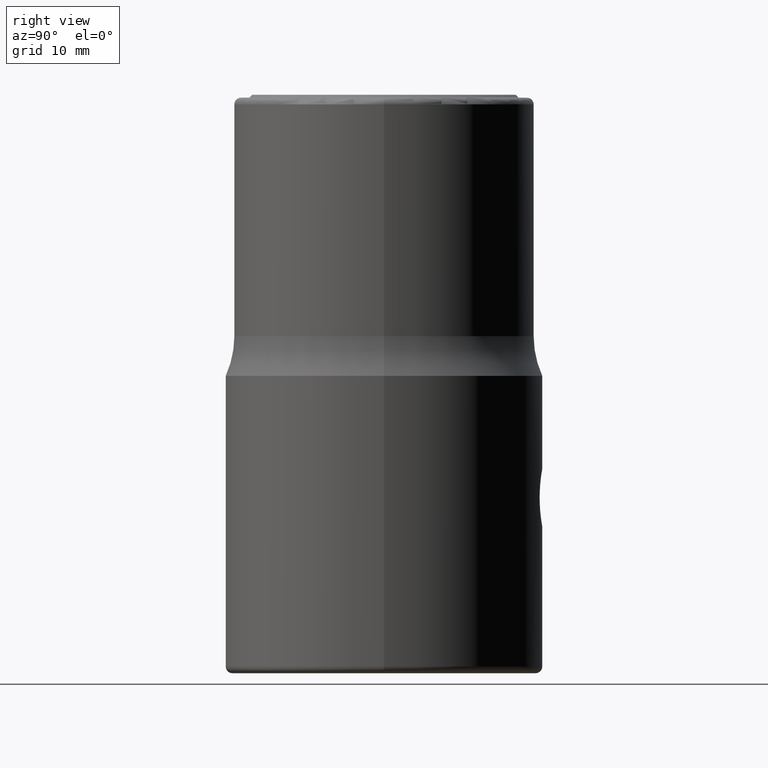
[diagram: clean part render]
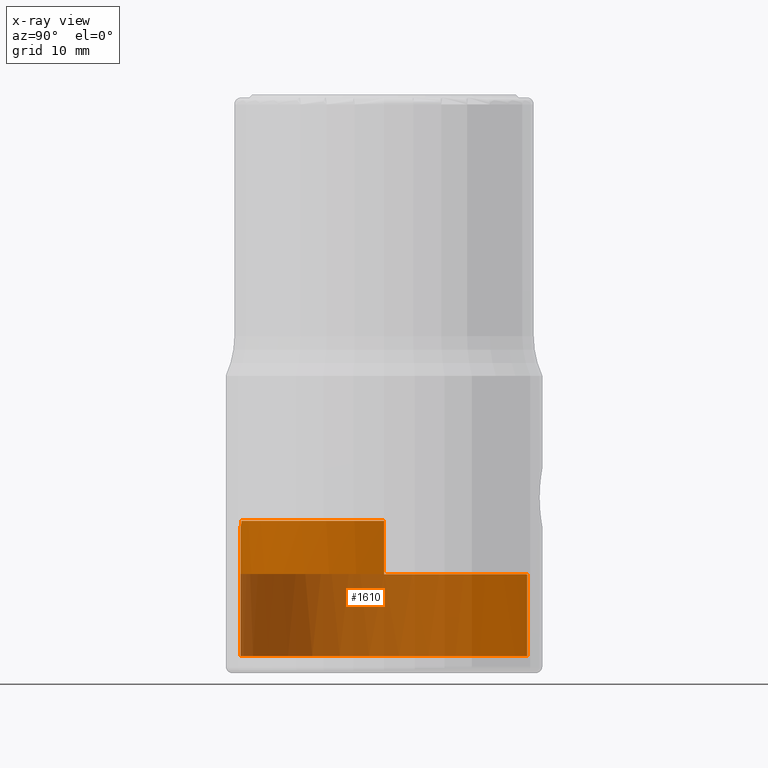
[diagram: x-ray — body ghosted, one internal face saturated and labeled with its STEP entity id]
A machine part, right view, then the same camera in x-ray: the body is ghosted and one INTERNAL B-rep face — a face not visible from any outside direction — is saturated and labeled: STEP entity #1610.
In plain terms, the highlighted cylindrical surface (partial cylindrical patch) has radius 14.95 mm, axis along (0, 0, 1).
Its self-contained STEP definition (entity closure, byte-faithful):
#88=DIRECTION('',(0.E0,0.E0,1.E0));
#89=VECTOR('',#88,5.581334303795E0);
#90=CARTESIAN_POINT('',(1.495E1,0.E0,0.E0));
#91=LINE('',#90,#89);
#118=CARTESIAN_POINT('',(0.E0,0.E0,0.E0));
#119=DIRECTION('',(0.E0,0.E0,-1.E0));
#120=DIRECTION('',(-1.E0,0.E0,0.E0));
#121=AXIS2_PLACEMENT_3D('',#118,#119,#120);
#211=CARTESIAN_POINT('',(0.E0,0.E0,-8.5E0));
#212=DIRECTION('',(0.E0,0.E0,1.E0));
#213=DIRECTION('',(0.E0,1.E0,0.E0));
#214=AXIS2_PLACEMENT_3D('',#211,#212,#213);
#216=DIRECTION('',(-1.296907997615E-9,5.735124793339E-12,1.E0));
#217=VECTOR('',#216,8.500000000049E0);
#218=CARTESIAN_POINT('',(1.102371889521E-8,1.494999999995E1,-8.500000000049E0));
#219=LINE('',#218,#217);
#220=DIRECTION('',(0.E0,0.E0,1.E0));
#221=VECTOR('',#220,5.581334303795E0);
#222=CARTESIAN_POINT('',(-1.495E1,0.E0,0.E0));
#223=LINE('',#222,#221);
#224=CARTESIAN_POINT('',(0.E0,0.E0,5.581334303795E0));
#225=DIRECTION('',(0.E0,0.E0,1.E0));
#226=DIRECTION('',(-1.E0,0.E0,0.E0));
#227=AXIS2_PLACEMENT_3D('',#224,#225,#226);
#229=CARTESIAN_POINT('',(0.E0,-1.495E1,4.955E0));
#230=CARTESIAN_POINT('',(-1.574531686767E-1,-1.495E1,4.955E0));
#231=CARTESIAN_POINT('',(-4.743709345286E-1,-1.494521613385E1,
4.978306971766E0));
#232=CARTESIAN_POINT('',(-9.784328847159E-1,-1.492066083171E1,
5.101036974589E0));
#233=CARTESIAN_POINT('',(-1.441260326637E0,-1.488252278262E1,5.302481475774E0));
#234=CARTESIAN_POINT('',(-1.718484526344E0,-1.485149305550E1,5.480832868957E0));
#235=CARTESIAN_POINT('',(-1.849886820862E0,-1.483510764201E1,5.581334303795E0));
#237=CARTESIAN_POINT('',(1.849886820862E0,-1.483510764201E1,5.581334303795E0));
#238=CARTESIAN_POINT('',(1.718520756900E0,-1.485148853767E1,5.480860579454E0));
#239=CARTESIAN_POINT('',(1.441219619907E0,-1.488251573838E1,5.302525704448E0));
#240=CARTESIAN_POINT('',(9.793356471853E-1,-1.492061378959E1,5.101275296599E0));
#241=CARTESIAN_POINT('',(4.728057820206E-1,-1.494528073602E1,4.977984660314E0));
#242=CARTESIAN_POINT('',(1.567769595419E-1,-1.495E1,4.955E0));
#243=CARTESIAN_POINT('',(0.E0,-1.495E1,4.955E0));
#245=CARTESIAN_POINT('',(0.E0,0.E0,5.581334303795E0));
#246=DIRECTION('',(0.E0,0.E0,1.E0));
#247=DIRECTION('',(1.237382488871E-1,-9.923148924421E-1,0.E0));
#248=AXIS2_PLACEMENT_3D('',#245,#246,#247);
#250=CARTESIAN_POINT('',(0.E0,0.E0,0.E0));
#251=DIRECTION('',(0.E0,0.E0,-1.E0));
#252=DIRECTION('',(1.E0,0.E0,0.E0));
#253=AXIS2_PLACEMENT_3D('',#250,#251,#252);
#255=DIRECTION('',(1.296907965759E-9,-5.735124793339E-12,1.E0));
#256=VECTOR('',#255,8.500000000049E0);
#257=CARTESIAN_POINT('',(-1.102371862443E-8,-1.494999999995E1,
-8.500000000049E0));
#258=LINE('',#257,#256);
#1259=VERTEX_POINT('',#229);
#1260=VERTEX_POINT('',#235);
#1264=VERTEX_POINT('',#237);
#1275=CARTESIAN_POINT('',(-1.495E1,0.E0,5.581334303795E0));
#1276=VERTEX_POINT('',#1275);
#1279=CARTESIAN_POINT('',(1.495E1,0.E0,5.581334303795E0));
#1280=VERTEX_POINT('',#1279);
#1349=CARTESIAN_POINT('',(1.495E1,0.E0,0.E0));
#1350=CARTESIAN_POINT('',(0.E0,-1.495E1,0.E0));
#1351=VERTEX_POINT('',#1349);
#1352=VERTEX_POINT('',#1350);
#1353=CARTESIAN_POINT('',(-1.495E1,0.E0,0.E0));
#1354=CARTESIAN_POINT('',(0.E0,1.495E1,0.E0));
#1355=VERTEX_POINT('',#1353);
#1356=VERTEX_POINT('',#1354);
#1383=CARTESIAN_POINT('',(0.E0,-1.495E1,-8.5E0));
#1384=CARTESIAN_POINT('',(0.E0,1.495E1,-8.5E0));
#1385=VERTEX_POINT('',#1383);
#1386=VERTEX_POINT('',#1384);
#1589=CARTESIAN_POINT('',(0.E0,0.E0,0.E0));
#1590=DIRECTION('',(0.E0,0.E0,1.E0));
#1591=DIRECTION('',(1.E0,0.E0,0.E0));
#1592=AXIS2_PLACEMENT_3D('',#1589,#1590,#1591);
#1593=CYLINDRICAL_SURFACE('',#1592,1.495E1);
#1595=ORIENTED_EDGE('',*,*,#1594,.F.);
#1596=ORIENTED_EDGE('',*,*,#1512,.T.);
#1597=ORIENTED_EDGE('',*,*,#1510,.F.);
#1598=ORIENTED_EDGE('',*,*,#1508,.T.);
#1599=ORIENTED_EDGE('',*,*,#1565,.T.);
#1600=ORIENTED_EDGE('',*,*,#1540,.F.);
#1602=ORIENTED_EDGE('',*,*,#1601,.F.);
#1604=ORIENTED_EDGE('',*,*,#1603,.T.);
#1605=ORIENTED_EDGE('',*,*,#1498,.F.);
#1606=ORIENTED_EDGE('',*,*,#1496,.T.);
#1607=ORIENTED_EDGE('',*,*,#1494,.F.);
#1608=EDGE_LOOP('',(#1595,#1596,#1597,#1598,#1599,#1600,#1602,#1604,#1605,#1606,
#1607));
#1609=FACE_OUTER_BOUND('',#1608,.F.);
#1610=ADVANCED_FACE('',(#1609),#1593,.T.);
#122=CIRCLE('',#121,1.495E1);
#215=CIRCLE('',#214,1.495E1);
#228=CIRCLE('',#227,1.495E1);
#236=B_SPLINE_CURVE_WITH_KNOTS('',3,(#229,#230,#231,#232,#233,#234,#235),
.UNSPECIFIED.,.F.,.F.,(4,1,1,1,4),(0.E0,2.5E-1,5.E-1,7.5E-1,1.E0),
.UNSPECIFIED.);
#244=B_SPLINE_CURVE_WITH_KNOTS('',3,(#237,#238,#239,#240,#241,#242,#243),
.UNSPECIFIED.,.F.,.F.,(4,1,1,1,4),(0.E0,2.5E-1,5.E-1,7.5E-1,1.E0),
.UNSPECIFIED.);
#249=CIRCLE('',#248,1.495E1);
#254=CIRCLE('',#253,1.495E1);
#1494=EDGE_CURVE('',#1385,#1352,#258,.T.);
#1496=EDGE_CURVE('',#1351,#1352,#254,.T.);
#1498=EDGE_CURVE('',#1351,#1280,#91,.T.);
#1508=EDGE_CURVE('',#1355,#1276,#223,.T.);
#1510=EDGE_CURVE('',#1355,#1356,#122,.T.);
#1512=EDGE_CURVE('',#1386,#1356,#219,.T.);
#1540=EDGE_CURVE('',#1259,#1260,#236,.T.);
#1565=EDGE_CURVE('',#1276,#1260,#228,.T.);
#1594=EDGE_CURVE('',#1386,#1385,#215,.T.);
#1601=EDGE_CURVE('',#1264,#1259,#244,.T.);
#1603=EDGE_CURVE('',#1264,#1280,#249,.T.);